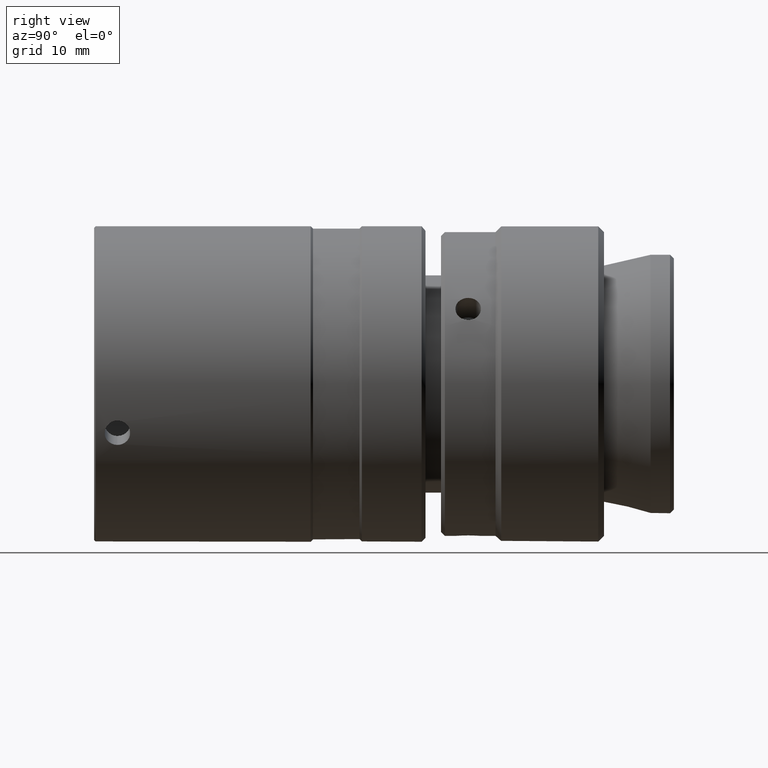
[diagram: clean part render]
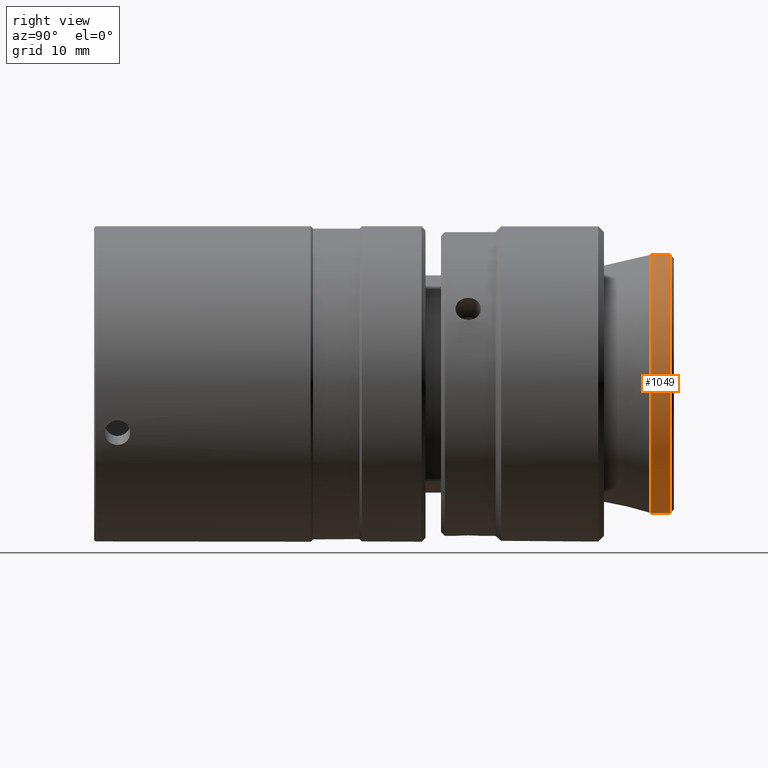
[diagram: same view with one face highlighted and labeled with its STEP entity id]
A machine part, right view. The second image highlights one B-rep face of the part: STEP entity #1049.
In plain terms, the highlighted cylindrical surface (bore or boss wall) has radius 16.65 mm, axis along (0, 1, 0).
Its self-contained STEP definition (entity closure, byte-faithful):
#132 = DIRECTION ( 'NONE',  ( 0.000000000000000000, 1.000000000000000000, 0.000000000000000000 ) ) ;
#190 = AXIS2_PLACEMENT_3D ( 'NONE', #1785, #820, #799 ) ;
#309 = CARTESIAN_POINT ( 'NONE',  ( 45.63870267272136516, 61.85366667322865908, 43.32268782812209196 ) ) ;
#507 = VERTEX_POINT ( 'NONE', #1487 ) ;
#758 = AXIS2_PLACEMENT_3D ( 'NONE', #309, #1702, #1887 ) ;
#799 = DIRECTION ( 'NONE',  ( -1.000000000000000000, 0.000000000000000000, 0.000000000000000000 ) ) ;
#819 = EDGE_CURVE ( 'NONE', #507, #507, #966, .T. ) ;
#820 = DIRECTION ( 'NONE',  ( -4.167443555377456711E-16, -1.000000000000000000, 2.241697472336602727E-18 ) ) ;
#828 = ORIENTED_EDGE ( 'NONE', *, *, #819, .F. ) ;
#886 = CARTESIAN_POINT ( 'NONE',  ( 45.63870267272136516, 61.85366667322865908, 59.97268782812209764 ) ) ;
#966 = CIRCLE ( 'NONE', #190, 16.64999999999999858 ) ;
#1026 = CIRCLE ( 'NONE', #758, 16.65000000000000568 ) ;
#1049 = ADVANCED_FACE ( 'NONE', ( #1276, #1386 ), #1743, .T. ) ;
#1103 = ORIENTED_EDGE ( 'NONE', *, *, #1926, .T. ) ;
#1165 = EDGE_LOOP ( 'NONE', ( #828 ) ) ;
#1276 = FACE_OUTER_BOUND ( 'NONE', #1165, .T. ) ;
#1386 = FACE_OUTER_BOUND ( 'NONE', #1965, .T. ) ;
#1389 = VERTEX_POINT ( 'NONE', #886 ) ;
#1439 = DIRECTION ( 'NONE',  ( 0.000000000000000000, 0.000000000000000000, 1.000000000000000000 ) ) ;
#1482 = AXIS2_PLACEMENT_3D ( 'NONE', #1732, #132, #1439 ) ;
#1487 = CARTESIAN_POINT ( 'NONE',  ( 28.98870267272137013, 59.35366667322865908, 43.32268782812209196 ) ) ;
#1702 = DIRECTION ( 'NONE',  ( -0.000000000000000000, -1.000000000000000000, -0.000000000000000000 ) ) ;
#1732 = CARTESIAN_POINT ( 'NONE',  ( 45.63870267272136516, 65.42131226997661031, 43.32268782812209196 ) ) ;
#1743 = CYLINDRICAL_SURFACE ( 'NONE', #1482, 16.65000000000000568 ) ;
#1785 = CARTESIAN_POINT ( 'NONE',  ( 45.63870267272136516, 59.35366667322865908, 43.32268782812209196 ) ) ;
#1887 = DIRECTION ( 'NONE',  ( 0.000000000000000000, 0.000000000000000000, 1.000000000000000000 ) ) ;
#1926 = EDGE_CURVE ( 'NONE', #1389, #1389, #1026, .T. ) ;
#1965 = EDGE_LOOP ( 'NONE', ( #1103 ) ) ;